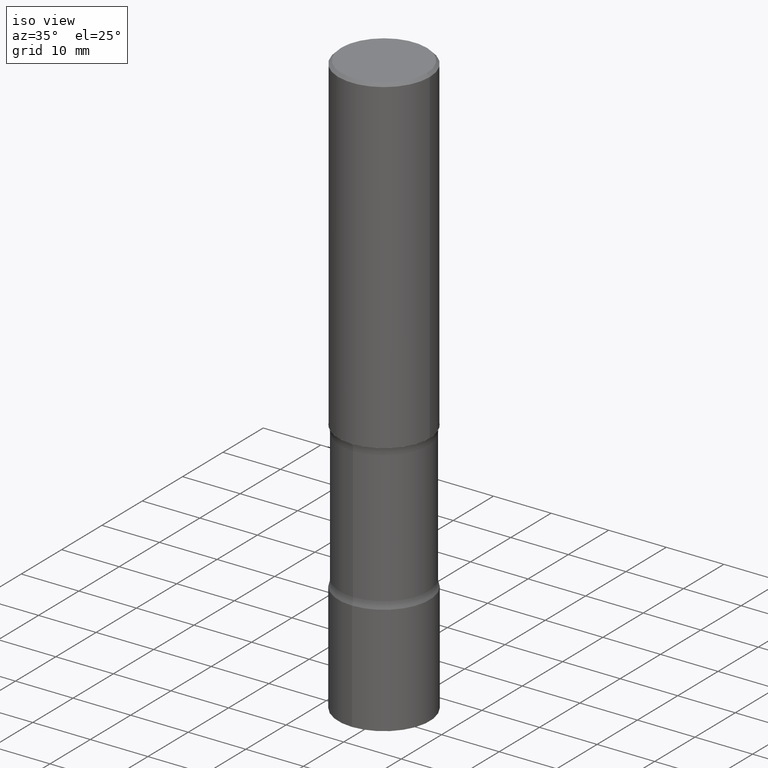
[diagram: clean part render]
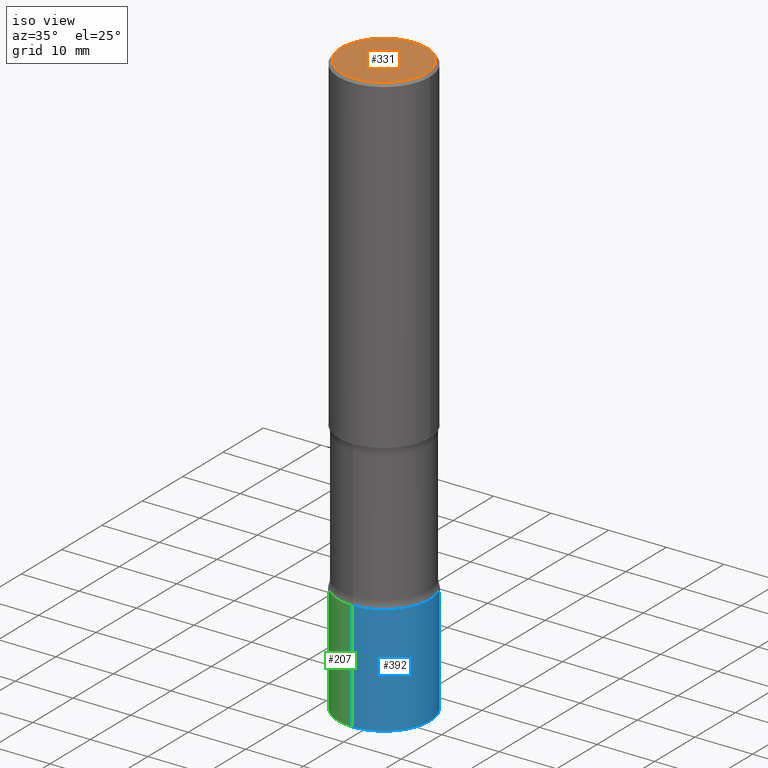
[diagram: same view with three faces highlighted in distinct colors, each labeled with its STEP entity id]
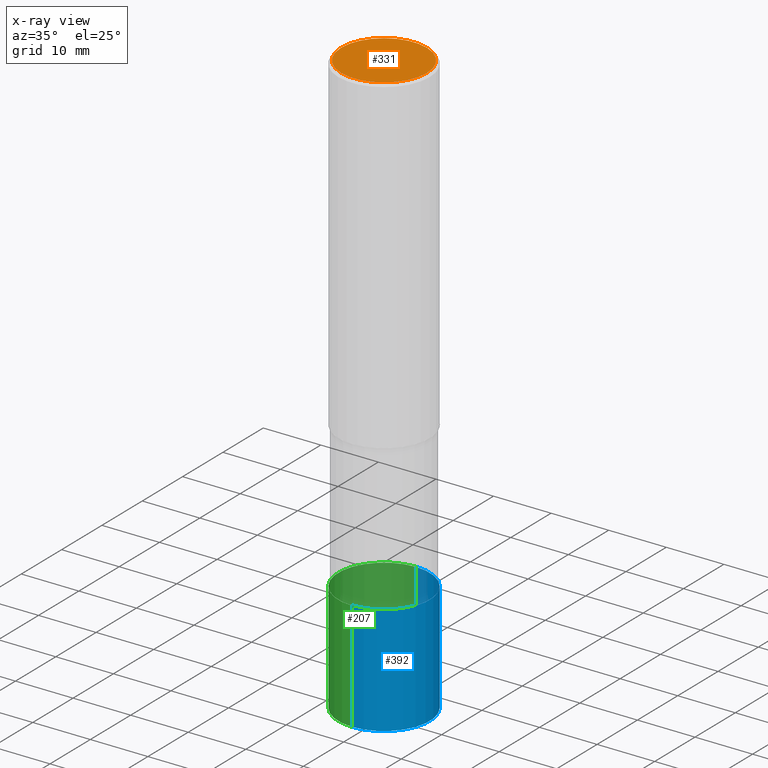
[diagram: x-ray of the same camera — body ghosted, the three highlighted faces saturated]
A machine part, iso view with three faces highlighted in distinct colors.
The next image is the same camera in x-ray (body ghosted, the three faces saturated) — at least one of them is partly hidden behind the body in this view.
Their STEP definitions:

[orange] entity #331 — the highlighted planar face has unit normal (0, -0, -1).
#27 = DIRECTION ( 'NONE',  ( 1.000000000000000000, -6.982962677686265133E-15, 4.876067333457694521E-29 ) ) ;
#37 = EDGE_CURVE ( 'NONE', #349, #354, #172, .T. ) ;
#62 = EDGE_CURVE ( 'NONE', #354, #349, #446, .T. ) ;
#72 = AXIS2_PLACEMENT_3D ( 'NONE', #296, #449, #115 ) ;
#74 = DIRECTION ( 'NONE',  ( -2.445468806185136597E-29, 3.491481338843145583E-15, 1.000000000000000000 ) ) ;
#75 = ORIENTED_EDGE ( 'NONE', *, *, #62, .T. ) ;
#95 = CARTESIAN_POINT ( 'NONE',  ( -0.2924999999999997047, 2.077431396611661822E-15, 4.268512490086005323E-18 ) ) ;
#112 = DIRECTION ( 'NONE',  ( -1.000000000000000000, 6.982962677686265922E-15, -4.876176775795935793E-29 ) ) ;
#115 = DIRECTION ( 'NONE',  ( 1.000000000000000000, -6.982962677686265133E-15, 4.876067333457694521E-29 ) ) ;
#172 = CIRCLE ( 'NONE', #72, 0.2924999999999997047 ) ;
#190 = FACE_OUTER_BOUND ( 'NONE', #385, .T. ) ;
#208 = CARTESIAN_POINT ( 'NONE',  ( 0.2924999999999997047, -2.110215457714317564E-15, 4.268512490114932791E-18 ) ) ;
#263 = AXIS2_PLACEMENT_3D ( 'NONE', #295, #292, #112 ) ;
#292 = DIRECTION ( 'NONE',  ( 2.438088387897960049E-29, -3.491481338843145188E-15, -1.000000000000000000 ) ) ;
#295 = CARTESIAN_POINT ( 'NONE',  ( 2.042516583223230567E-15, 0.2924999999999997047, -1.019124035366568817E-15 ) ) ;
#296 = CARTESIAN_POINT ( 'NONE',  ( -1.043851414335219820E-46, 1.490343170380447200E-32, 4.268512490100411279E-18 ) ) ;
#304 = CARTESIAN_POINT ( 'NONE',  ( -1.043851414335219820E-46, 1.490343170380447200E-32, 4.268512490100411279E-18 ) ) ;
#331 = ADVANCED_FACE ( 'NONE', ( #190 ), #490, .F. ) ;
#349 = VERTEX_POINT ( 'NONE', #95 ) ;
#354 = VERTEX_POINT ( 'NONE', #208 ) ;
#385 = EDGE_LOOP ( 'NONE', ( #405, #75 ) ) ;
#405 = ORIENTED_EDGE ( 'NONE', *, *, #37, .T. ) ;
#446 = CIRCLE ( 'NONE', #503, 0.2924999999999997047 ) ;
#449 = DIRECTION ( 'NONE',  ( -2.445468806185136597E-29, 3.491481338843145583E-15, 1.000000000000000000 ) ) ;
#490 = PLANE ( 'NONE',  #263 ) ;
#503 = AXIS2_PLACEMENT_3D ( 'NONE', #304, #74, #27 ) ;

[blue] entity #392 — the highlighted cylindrical surface (partial cylindrical patch) has radius 7.9375 mm, axis along (-0, 0, 1).
#10 = FACE_OUTER_BOUND ( 'NONE', #82, .T. ) ;
#25 = CARTESIAN_POINT ( 'NONE',  ( -2.182175836776959136E-15, -0.3125000000000001665, 1.091282791929301285E-15 ) ) ;
#31 = CARTESIAN_POINT ( 'NONE',  ( 9.780133407572677289E-29, -1.396841973669504667E-14, -4.000000000000000000 ) ) ;
#48 = VERTEX_POINT ( 'NONE', #414 ) ;
#50 = EDGE_CURVE ( 'NONE', #48, #388, #305, .T. ) ;
#51 = VECTOR ( 'NONE', #332, 39.37007874015748143 ) ;
#78 = ORIENTED_EDGE ( 'NONE', *, *, #204, .T. ) ;
#82 = EDGE_LOOP ( 'NONE', ( #219, #78, #282, #502 ) ) ;
#92 = DIRECTION ( 'NONE',  ( -6.982962677686265133E-15, -1.000000000000000000, 3.492104934173762061E-15 ) ) ;
#94 = EDGE_CURVE ( 'NONE', #48, #233, #189, .T. ) ;
#125 = VECTOR ( 'NONE', #501, 39.37007874015748143 ) ;
#129 = EDGE_CURVE ( 'NONE', #233, #287, #200, .T. ) ;
#132 = AXIS2_PLACEMENT_3D ( 'NONE', #426, #427, #458 ) ;
#139 = CARTESIAN_POINT ( 'NONE',  ( 0.000000000000000000, 0.000000000000000000, 0.000000000000000000 ) ) ;
#151 = AXIS2_PLACEMENT_3D ( 'NONE', #31, #160, #337 ) ;
#160 = DIRECTION ( 'NONE',  ( -2.445033351893169322E-29, 3.492104934173762061E-15, 1.000000000000000000 ) ) ;
#182 = CARTESIAN_POINT ( 'NONE',  ( 2.220446049250412083E-15, 0.3124999999999887867, -3.250000000000001332 ) ) ;
#189 = LINE ( 'NONE', #25, #51 ) ;
#200 = CIRCLE ( 'NONE', #132, 0.3125000000000001665 ) ;
#204 = EDGE_CURVE ( 'NONE', #388, #287, #420, .T. ) ;
#219 = ORIENTED_EDGE ( 'NONE', *, *, #50, .T. ) ;
#233 = VERTEX_POINT ( 'NONE', #362 ) ;
#274 = DIRECTION ( 'NONE',  ( -2.445033351893169322E-29, 3.492104934173762061E-15, 1.000000000000000000 ) ) ;
#282 = ORIENTED_EDGE ( 'NONE', *, *, #129, .F. ) ;
#287 = VERTEX_POINT ( 'NONE', #182 ) ;
#305 = CIRCLE ( 'NONE', #151, 0.3125000000000001665 ) ;
#314 = CYLINDRICAL_SURFACE ( 'NONE', #328, 0.3125000000000001665 ) ;
#328 = AXIS2_PLACEMENT_3D ( 'NONE', #139, #274, #92 ) ;
#332 = DIRECTION ( 'NONE',  ( -2.445033351893169042E-29, 3.492104934173762061E-15, 1.000000000000000000 ) ) ;
#337 = DIRECTION ( 'NONE',  ( -6.982962677686265133E-15, -1.000000000000000000, 3.496765431890254947E-15 ) ) ;
#362 = CARTESIAN_POINT ( 'NONE',  ( -2.182175836776879461E-15, -0.3125000000000114908, -3.249999999999999112 ) ) ;
#378 = CARTESIAN_POINT ( 'NONE',  ( 2.220446049250313475E-15, 0.3125000000000001665, -1.091282791929301285E-15 ) ) ;
#386 = CARTESIAN_POINT ( 'NONE',  ( 2.220446049250402617E-15, 0.3124999999999861222, -4.000000000000000888 ) ) ;
#388 = VERTEX_POINT ( 'NONE', #386 ) ;
#392 = ADVANCED_FACE ( 'NONE', ( #10 ), #314, .T. ) ;
#414 = CARTESIAN_POINT ( 'NONE',  ( -2.182175836776861317E-15, -0.3125000000000141553, -3.999999999999998668 ) ) ;
#420 = LINE ( 'NONE', #378, #125 ) ;
#426 = CARTESIAN_POINT ( 'NONE',  ( 7.946358393652800227E-29, -1.134934103606472690E-14, -3.250000000000000000 ) ) ;
#427 = DIRECTION ( 'NONE',  ( -2.445033351893169322E-29, 3.492104934173762061E-15, 1.000000000000000000 ) ) ;
#458 = DIRECTION ( 'NONE',  ( -6.982962677686265133E-15, -1.000000000000000000, 3.496765431890254947E-15 ) ) ;
#501 = DIRECTION ( 'NONE',  ( -2.445033351893169042E-29, 3.492104934173762061E-15, 1.000000000000000000 ) ) ;
#502 = ORIENTED_EDGE ( 'NONE', *, *, #94, .F. ) ;

[green] entity #207 — the highlighted cylindrical surface (partial cylindrical patch) has radius 7.9375 mm, axis along (-0, 0, 1).
#5 = CIRCLE ( 'NONE', #179, 0.3125000000000001665 ) ;
#11 = DIRECTION ( 'NONE',  ( -6.982962677686265133E-15, -1.000000000000000000, 3.496765431890254947E-15 ) ) ;
#17 = DIRECTION ( 'NONE',  ( -2.445033351893169322E-29, 3.492104934173762061E-15, 1.000000000000000000 ) ) ;
#25 = CARTESIAN_POINT ( 'NONE',  ( -2.182175836776959136E-15, -0.3125000000000001665, 1.091282791929301285E-15 ) ) ;
#26 = EDGE_CURVE ( 'NONE', #287, #233, #5, .T. ) ;
#48 = VERTEX_POINT ( 'NONE', #414 ) ;
#51 = VECTOR ( 'NONE', #332, 39.37007874015748143 ) ;
#59 = CARTESIAN_POINT ( 'NONE',  ( 9.780133407572677289E-29, -1.396841973669504667E-14, -4.000000000000000000 ) ) ;
#67 = CIRCLE ( 'NONE', #173, 0.3125000000000001665 ) ;
#79 = ORIENTED_EDGE ( 'NONE', *, *, #26, .F. ) ;
#93 = DIRECTION ( 'NONE',  ( -2.445033351893169322E-29, 3.492104934173762061E-15, 1.000000000000000000 ) ) ;
#94 = EDGE_CURVE ( 'NONE', #48, #233, #189, .T. ) ;
#99 = AXIS2_PLACEMENT_3D ( 'NONE', #456, #93, #473 ) ;
#125 = VECTOR ( 'NONE', #501, 39.37007874015748143 ) ;
#169 = ORIENTED_EDGE ( 'NONE', *, *, #204, .F. ) ;
#173 = AXIS2_PLACEMENT_3D ( 'NONE', #59, #17, #11 ) ;
#179 = AXIS2_PLACEMENT_3D ( 'NONE', #410, #418, #334 ) ;
#182 = CARTESIAN_POINT ( 'NONE',  ( 2.220446049250412083E-15, 0.3124999999999887867, -3.250000000000001332 ) ) ;
#189 = LINE ( 'NONE', #25, #51 ) ;
#204 = EDGE_CURVE ( 'NONE', #388, #287, #420, .T. ) ;
#207 = ADVANCED_FACE ( 'NONE', ( #306 ), #269, .T. ) ;
#233 = VERTEX_POINT ( 'NONE', #362 ) ;
#258 = EDGE_CURVE ( 'NONE', #388, #48, #67, .T. ) ;
#269 = CYLINDRICAL_SURFACE ( 'NONE', #99, 0.3125000000000001665 ) ;
#287 = VERTEX_POINT ( 'NONE', #182 ) ;
#306 = FACE_OUTER_BOUND ( 'NONE', #438, .T. ) ;
#332 = DIRECTION ( 'NONE',  ( -2.445033351893169042E-29, 3.492104934173762061E-15, 1.000000000000000000 ) ) ;
#334 = DIRECTION ( 'NONE',  ( -6.982962677686265133E-15, -1.000000000000000000, 3.496765431890254947E-15 ) ) ;
#362 = CARTESIAN_POINT ( 'NONE',  ( -2.182175836776879461E-15, -0.3125000000000114908, -3.249999999999999112 ) ) ;
#378 = CARTESIAN_POINT ( 'NONE',  ( 2.220446049250313475E-15, 0.3125000000000001665, -1.091282791929301285E-15 ) ) ;
#384 = ORIENTED_EDGE ( 'NONE', *, *, #258, .T. ) ;
#386 = CARTESIAN_POINT ( 'NONE',  ( 2.220446049250402617E-15, 0.3124999999999861222, -4.000000000000000888 ) ) ;
#388 = VERTEX_POINT ( 'NONE', #386 ) ;
#410 = CARTESIAN_POINT ( 'NONE',  ( 7.946358393652800227E-29, -1.134934103606472690E-14, -3.250000000000000000 ) ) ;
#414 = CARTESIAN_POINT ( 'NONE',  ( -2.182175836776861317E-15, -0.3125000000000141553, -3.999999999999998668 ) ) ;
#418 = DIRECTION ( 'NONE',  ( -2.445033351893169322E-29, 3.492104934173762061E-15, 1.000000000000000000 ) ) ;
#420 = LINE ( 'NONE', #378, #125 ) ;
#438 = EDGE_LOOP ( 'NONE', ( #169, #384, #450, #79 ) ) ;
#450 = ORIENTED_EDGE ( 'NONE', *, *, #94, .T. ) ;
#456 = CARTESIAN_POINT ( 'NONE',  ( 0.000000000000000000, 0.000000000000000000, 0.000000000000000000 ) ) ;
#473 = DIRECTION ( 'NONE',  ( -6.982962677686265133E-15, -1.000000000000000000, 3.492104934173762061E-15 ) ) ;
#501 = DIRECTION ( 'NONE',  ( -2.445033351893169042E-29, 3.492104934173762061E-15, 1.000000000000000000 ) ) ;